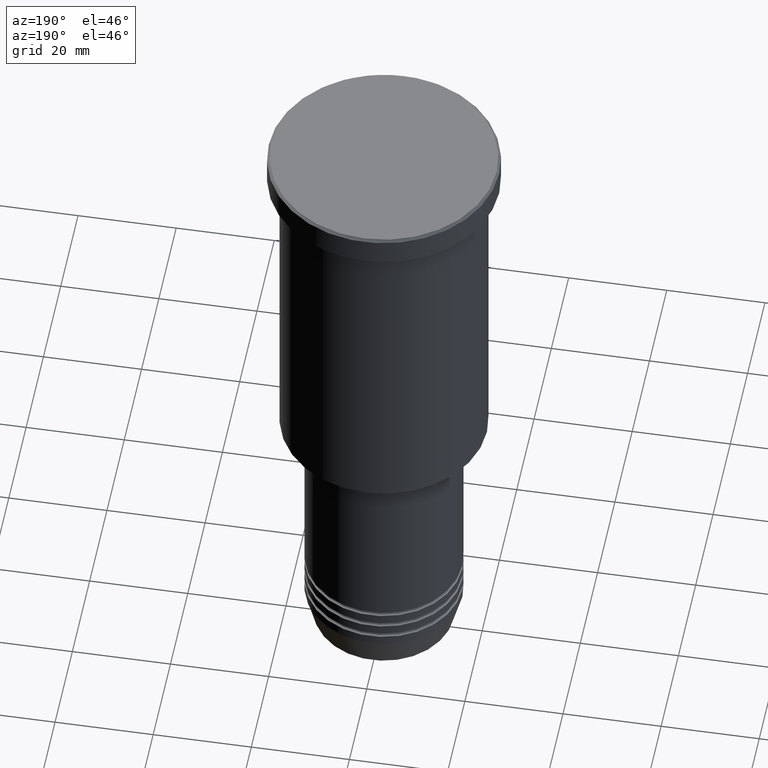
[diagram: clean part render]
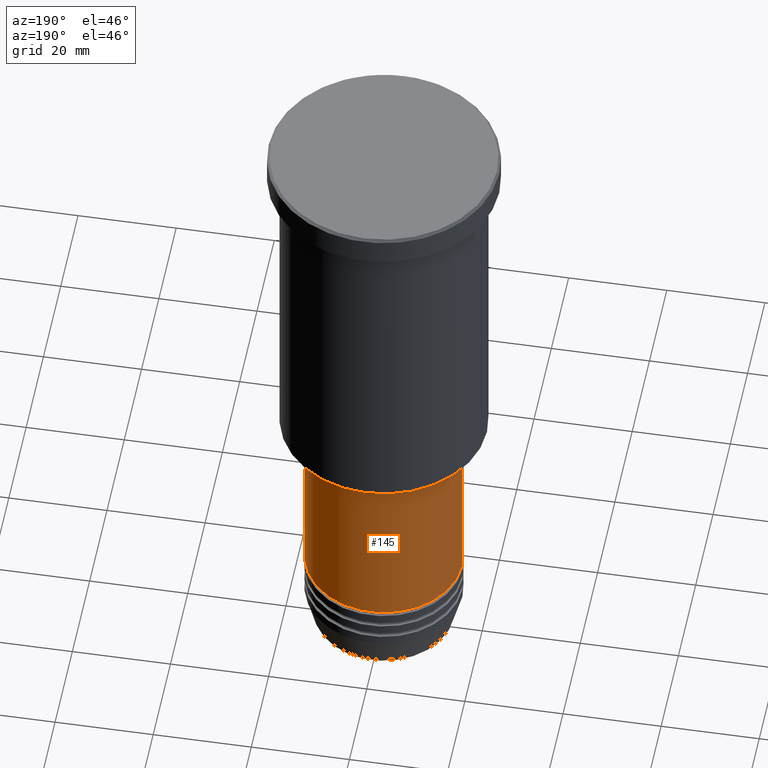
[diagram: same view with one face highlighted and labeled with its STEP entity id]
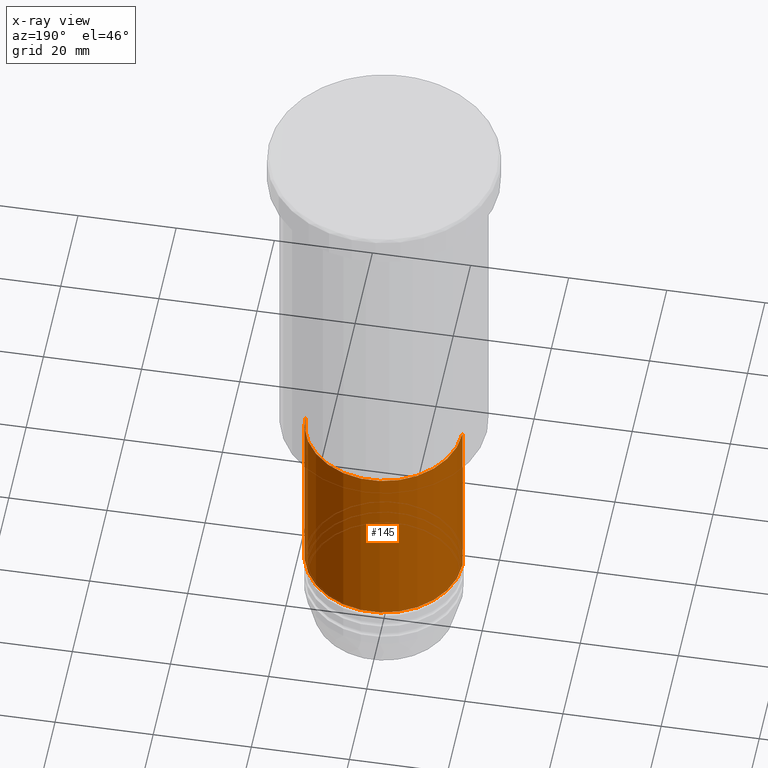
[diagram: x-ray of the same camera — body ghosted, the highlighted face saturated]
A machine part, auxiliary view. The second image highlights one B-rep face of the part: STEP entity #145.
The next image is the same camera in x-ray: the body ghosted, the highlighted face saturated — about 1% of this face is hidden behind the body in this view.
In plain terms, the highlighted cylindrical surface (partial cylindrical patch) has radius 16 mm, axis along (-0, -0, 1).
Its self-contained STEP definition (entity closure, byte-faithful):
#15 = DIRECTION ( 'NONE',  ( 1.000000000000000000, 0.000000000000000000, 0.000000000000000000 ) ) ;
#16 = EDGE_CURVE ( 'NONE', #221, #1034, #411, .T. ) ;
#32 = CARTESIAN_POINT ( 'NONE',  ( -16.00000000000000000, 1.959434878635765131E-15, -76.99999999999998579 ) ) ;
#49 = EDGE_CURVE ( 'NONE', #148, #987, #683, .T. ) ;
#98 = VECTOR ( 'NONE', #594, 1000.000000000000000 ) ;
#119 = DIRECTION ( 'NONE',  ( 1.000000000000000000, 0.000000000000000000, 0.000000000000000000 ) ) ;
#145 = ADVANCED_FACE ( 'NONE', ( #243 ), #605, .T. ) ;
#147 = EDGE_CURVE ( 'NONE', #148, #221, #1130, .T. ) ;
#148 = VERTEX_POINT ( 'NONE', #1013 ) ;
#189 = AXIS2_PLACEMENT_3D ( 'NONE', #843, #916, #15 ) ;
#206 = ORIENTED_EDGE ( 'NONE', *, *, #147, .T. ) ;
#221 = VERTEX_POINT ( 'NONE', #609 ) ;
#236 = CARTESIAN_POINT ( 'NONE',  ( 16.00000000000000000, 0.000000000000000000, 0.000000000000000000 ) ) ;
#243 = FACE_OUTER_BOUND ( 'NONE', #922, .T. ) ;
#271 = AXIS2_PLACEMENT_3D ( 'NONE', #348, #521, #1181 ) ;
#292 = DIRECTION ( 'NONE',  ( -0.000000000000000000, -0.000000000000000000, 1.000000000000000000 ) ) ;
#299 = CARTESIAN_POINT ( 'NONE',  ( 0.000000000000000000, 0.000000000000000000, -76.99999999999998579 ) ) ;
#348 = CARTESIAN_POINT ( 'NONE',  ( 0.000000000000000000, 0.000000000000000000, 0.000000000000000000 ) ) ;
#380 = EDGE_CURVE ( 'NONE', #987, #1034, #1150, .T. ) ;
#391 = ORIENTED_EDGE ( 'NONE', *, *, #380, .F. ) ;
#411 = LINE ( 'NONE', #884, #572 ) ;
#521 = DIRECTION ( 'NONE',  ( -0.000000000000000000, -0.000000000000000000, 1.000000000000000000 ) ) ;
#572 = VECTOR ( 'NONE', #965, 1000.000000000000000 ) ;
#594 = DIRECTION ( 'NONE',  ( -0.000000000000000000, -0.000000000000000000, 1.000000000000000000 ) ) ;
#605 = CYLINDRICAL_SURFACE ( 'NONE', #271, 16.00000000000000000 ) ;
#609 = CARTESIAN_POINT ( 'NONE',  ( -16.00000000000000000, 1.959434878635765131E-15, -114.9999999999999574 ) ) ;
#644 = ORIENTED_EDGE ( 'NONE', *, *, #49, .F. ) ;
#663 = AXIS2_PLACEMENT_3D ( 'NONE', #299, #292, #119 ) ;
#683 = LINE ( 'NONE', #236, #98 ) ;
#843 = CARTESIAN_POINT ( 'NONE',  ( 0.000000000000000000, 0.000000000000000000, -114.9999999999999574 ) ) ;
#884 = CARTESIAN_POINT ( 'NONE',  ( -16.00000000000000000, 1.959434878635765131E-15, 0.000000000000000000 ) ) ;
#916 = DIRECTION ( 'NONE',  ( -0.000000000000000000, -0.000000000000000000, 1.000000000000000000 ) ) ;
#922 = EDGE_LOOP ( 'NONE', ( #206, #1036, #391, #644 ) ) ;
#965 = DIRECTION ( 'NONE',  ( -0.000000000000000000, -0.000000000000000000, 1.000000000000000000 ) ) ;
#987 = VERTEX_POINT ( 'NONE', #1104 ) ;
#1013 = CARTESIAN_POINT ( 'NONE',  ( 16.00000000000000000, 0.000000000000000000, -114.9999999999999574 ) ) ;
#1034 = VERTEX_POINT ( 'NONE', #32 ) ;
#1036 = ORIENTED_EDGE ( 'NONE', *, *, #16, .T. ) ;
#1104 = CARTESIAN_POINT ( 'NONE',  ( 16.00000000000000000, 0.000000000000000000, -76.99999999999998579 ) ) ;
#1130 = CIRCLE ( 'NONE', #189, 16.00000000000000000 ) ;
#1150 = CIRCLE ( 'NONE', #663, 16.00000000000000000 ) ;
#1181 = DIRECTION ( 'NONE',  ( 1.000000000000000000, 0.000000000000000000, 0.000000000000000000 ) ) ;